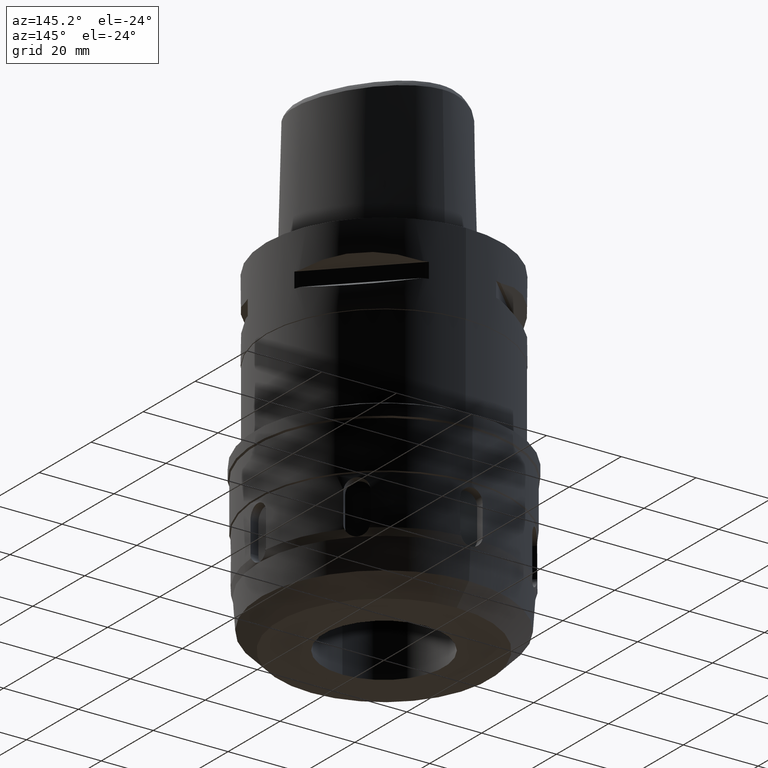
[diagram: clean part render]
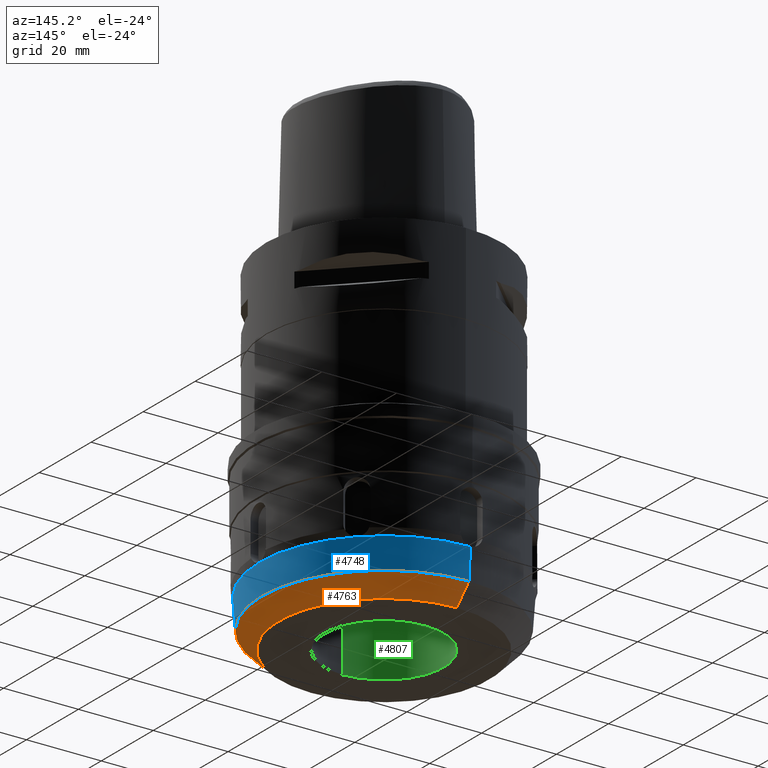
[diagram: same view with three faces highlighted in distinct colors, each labeled with its STEP entity id]
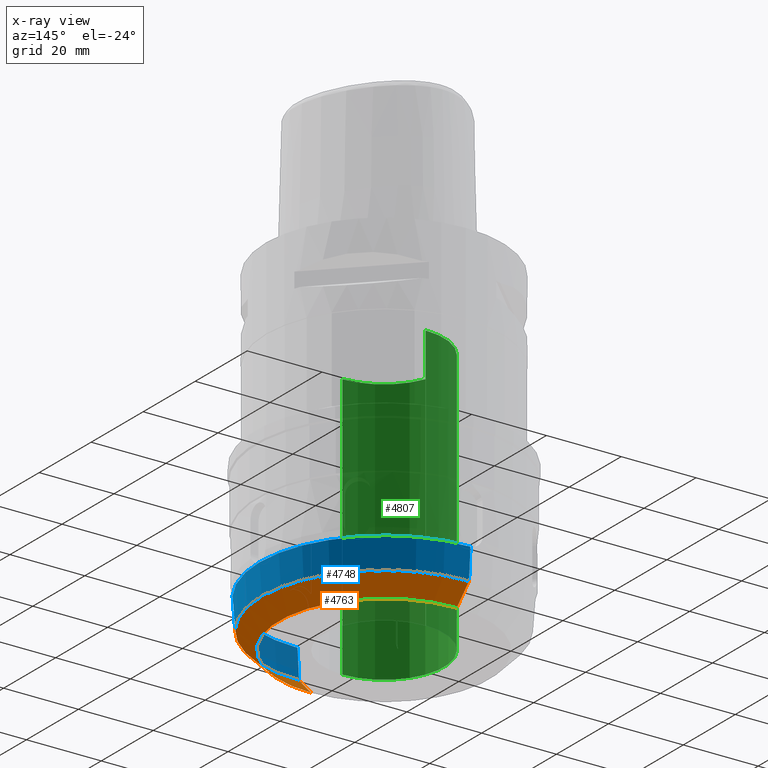
[diagram: x-ray of the same camera — body ghosted, the three highlighted faces saturated]
A machine part, auxiliary view with three faces highlighted in distinct colors.
The next image is the same camera in x-ray (body ghosted, the three faces saturated) — at least one of them is partly hidden behind the body in this view.
Their STEP definitions:

[orange] entity #4763 — the highlighted conical surface has half-angle 45 deg.
#1687=DIRECTION('',(0.E0,-7.071067811864E-1,-7.071067811867E-1));
#1688=VECTOR('',#1687,6.628418966842E0);
#1689=CARTESIAN_POINT('',(0.E0,3.2687E1,-8.5313E1));
#1690=LINE('',#1689,#1688);
#1694=CARTESIAN_POINT('',(0.E0,0.E0,-8.5313E1));
#1695=DIRECTION('',(0.E0,0.E0,1.E0));
#1696=DIRECTION('',(0.E0,-1.E0,0.E0));
#1697=AXIS2_PLACEMENT_3D('',#1694,#1695,#1696);
#1702=DIRECTION('',(0.E0,7.071067811864E-1,-7.071067811867E-1));
#1703=VECTOR('',#1702,6.628418966842E0);
#1704=CARTESIAN_POINT('',(0.E0,-3.2687E1,-8.5313E1));
#1705=LINE('',#1704,#1703);
#1709=CARTESIAN_POINT('',(0.E0,0.E0,-9.E1));
#1710=DIRECTION('',(0.E0,0.E0,1.E0));
#1711=DIRECTION('',(0.E0,-1.E0,0.E0));
#1712=AXIS2_PLACEMENT_3D('',#1709,#1710,#1711);
#3191=CARTESIAN_POINT('',(0.E0,3.2687E1,-8.5313E1));
#3192=VERTEX_POINT('',#3191);
#3193=CARTESIAN_POINT('',(0.E0,-3.2687E1,-8.5313E1));
#3194=VERTEX_POINT('',#3193);
#3195=CARTESIAN_POINT('',(0.E0,2.8E1,-9.E1));
#3196=VERTEX_POINT('',#3195);
#3197=CARTESIAN_POINT('',(0.E0,-2.8E1,-9.E1));
#3198=VERTEX_POINT('',#3197);
#4749=CARTESIAN_POINT('',(0.E0,0.E0,-8.76565E1));
#4750=DIRECTION('',(0.E0,0.E0,1.E0));
#4751=DIRECTION('',(0.E0,1.E0,0.E0));
#4752=AXIS2_PLACEMENT_3D('',#4749,#4750,#4751);
#4753=CONICAL_SURFACE('',#4752,3.03435E1,4.5E1);
#4755=ORIENTED_EDGE('',*,*,#4754,.T.);
#4757=ORIENTED_EDGE('',*,*,#4756,.F.);
#4759=ORIENTED_EDGE('',*,*,#4758,.F.);
#4760=ORIENTED_EDGE('',*,*,#4742,.T.);
#4761=EDGE_LOOP('',(#4755,#4757,#4759,#4760));
#4762=FACE_OUTER_BOUND('',#4761,.F.);
#1698=CIRCLE('',#1697,3.2687E1);
#1713=CIRCLE('',#1712,2.8E1);
#4742=EDGE_CURVE('',#3194,#3192,#1698,.T.);
#4754=EDGE_CURVE('',#3192,#3196,#1690,.T.);
#4756=EDGE_CURVE('',#3198,#3196,#1713,.T.);
#4758=EDGE_CURVE('',#3194,#3198,#1705,.T.);
#4763=ADVANCED_FACE('',(#4762),#4753,.T.);

[blue] entity #4748 — the highlighted conical surface has half-angle 4 deg.
#1657=DIRECTION('',(0.E0,6.975647374385E-2,-9.975640502598E-1));
#1658=VECTOR('',#1657,8.065102159982E0);
#1659=CARTESIAN_POINT('',(-7.790082838405E-14,-3.324959308706E1,
-7.726754402353E1));
#1660=LINE('',#1659,#1658);
#1672=DIRECTION('',(0.E0,-6.975647374385E-2,-9.975640502598E-1));
#1673=VECTOR('',#1672,8.065102159982E0);
#1674=CARTESIAN_POINT('',(0.E0,3.324959308706E1,-7.726754402353E1));
#1675=LINE('',#1674,#1673);
#1679=CARTESIAN_POINT('',(0.E0,0.E0,-7.726754402353E1));
#1680=DIRECTION('',(0.E0,0.E0,1.E0));
#1681=DIRECTION('',(0.E0,-1.E0,0.E0));
#1682=AXIS2_PLACEMENT_3D('',#1679,#1680,#1681);
#1694=CARTESIAN_POINT('',(0.E0,0.E0,-8.5313E1));
#1695=DIRECTION('',(0.E0,0.E0,1.E0));
#1696=DIRECTION('',(0.E0,-1.E0,0.E0));
#1697=AXIS2_PLACEMENT_3D('',#1694,#1695,#1696);
#3167=CARTESIAN_POINT('',(0.E0,3.324959308706E1,-7.726754402353E1));
#3168=VERTEX_POINT('',#3167);
#3169=CARTESIAN_POINT('',(0.E0,-3.324959308706E1,-7.726754402353E1));
#3170=VERTEX_POINT('',#3169);
#3191=CARTESIAN_POINT('',(0.E0,3.2687E1,-8.5313E1));
#3192=VERTEX_POINT('',#3191);
#3193=CARTESIAN_POINT('',(0.E0,-3.2687E1,-8.5313E1));
#3194=VERTEX_POINT('',#3193);
#4736=CARTESIAN_POINT('',(0.E0,0.E0,-8.129027201176E1));
#4737=DIRECTION('',(0.E0,0.E0,1.E0));
#4738=DIRECTION('',(0.E0,1.E0,0.E0));
#4739=AXIS2_PLACEMENT_3D('',#4736,#4737,#4738);
#4740=CONICAL_SURFACE('',#4739,3.296829654353E1,4.E0);
#4741=ORIENTED_EDGE('',*,*,#4726,.T.);
#4743=ORIENTED_EDGE('',*,*,#4742,.F.);
#4744=ORIENTED_EDGE('',*,*,#4729,.F.);
#4745=ORIENTED_EDGE('',*,*,#4541,.T.);
#4746=EDGE_LOOP('',(#4741,#4743,#4744,#4745));
#4747=FACE_OUTER_BOUND('',#4746,.F.);
#1683=CIRCLE('',#1682,3.324959308706E1);
#1698=CIRCLE('',#1697,3.2687E1);
#4541=EDGE_CURVE('',#3170,#3168,#1683,.T.);
#4726=EDGE_CURVE('',#3168,#3192,#1675,.T.);
#4729=EDGE_CURVE('',#3170,#3194,#1660,.T.);
#4742=EDGE_CURVE('',#3194,#3192,#1698,.T.);
#4748=ADVANCED_FACE('',(#4747),#4740,.T.);

[green] entity #4807 — the highlighted cylindrical surface (partial cylindrical patch) has radius 16 mm, axis along (0, 0, -1).
#1725=CARTESIAN_POINT('',(0.E0,1.279755905109E-14,-9.E1));
#1726=DIRECTION('',(0.E0,0.E0,-1.E0));
#1727=DIRECTION('',(0.E0,-1.E0,0.E0));
#1728=AXIS2_PLACEMENT_3D('',#1725,#1726,#1727);
#1741=DIRECTION('',(0.E0,0.E0,1.E0));
#1742=VECTOR('',#1741,7.1E1);
#1743=CARTESIAN_POINT('',(0.E0,-1.6E1,-9.E1));
#1744=LINE('',#1743,#1742);
#1748=DIRECTION('',(0.E0,0.E0,1.E0));
#1749=VECTOR('',#1748,7.1E1);
#1750=CARTESIAN_POINT('',(0.E0,1.6E1,-9.E1));
#1751=LINE('',#1750,#1749);
#1779=CARTESIAN_POINT('',(0.E0,1.279755905109E-14,-1.9E1));
#1780=DIRECTION('',(0.E0,0.E0,1.E0));
#1781=DIRECTION('',(0.E0,1.E0,0.E0));
#1782=AXIS2_PLACEMENT_3D('',#1779,#1780,#1781);
#3199=CARTESIAN_POINT('',(0.E0,-1.6E1,-9.E1));
#3200=CARTESIAN_POINT('',(0.E0,1.6E1,-9.E1));
#3201=VERTEX_POINT('',#3199);
#3202=VERTEX_POINT('',#3200);
#3203=CARTESIAN_POINT('',(0.E0,1.6E1,-1.9E1));
#3204=VERTEX_POINT('',#3203);
#3205=CARTESIAN_POINT('',(0.E0,-1.6E1,-1.9E1));
#3206=VERTEX_POINT('',#3205);
#4793=CARTESIAN_POINT('',(0.E0,1.279755905109E-14,4.5E0));
#4794=DIRECTION('',(0.E0,0.E0,-1.E0));
#4795=DIRECTION('',(0.E0,-1.E0,0.E0));
#4796=AXIS2_PLACEMENT_3D('',#4793,#4794,#4795);
#4797=CYLINDRICAL_SURFACE('',#4796,1.6E1);
#4799=ORIENTED_EDGE('',*,*,#4798,.F.);
#4800=ORIENTED_EDGE('',*,*,#4786,.F.);
#4802=ORIENTED_EDGE('',*,*,#4801,.T.);
#4804=ORIENTED_EDGE('',*,*,#4803,.F.);
#4805=EDGE_LOOP('',(#4799,#4800,#4802,#4804));
#4806=FACE_OUTER_BOUND('',#4805,.F.);
#1729=CIRCLE('',#1728,1.6E1);
#1783=CIRCLE('',#1782,1.6E1);
#4786=EDGE_CURVE('',#3201,#3202,#1729,.T.);
#4798=EDGE_CURVE('',#3202,#3204,#1751,.T.);
#4801=EDGE_CURVE('',#3201,#3206,#1744,.T.);
#4803=EDGE_CURVE('',#3204,#3206,#1783,.T.);
#4807=ADVANCED_FACE('',(#4806),#4797,.F.);